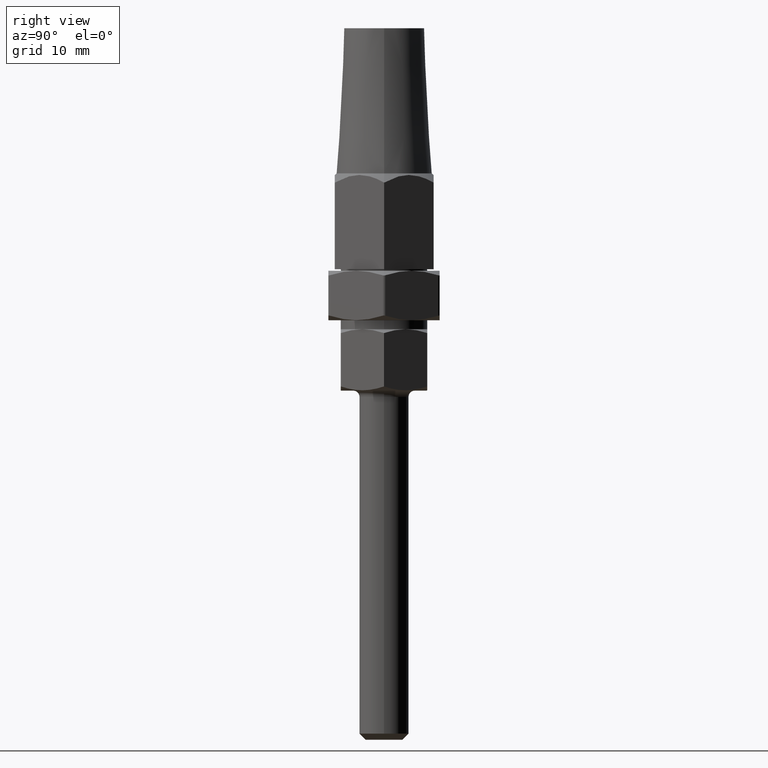
[diagram: clean part render]
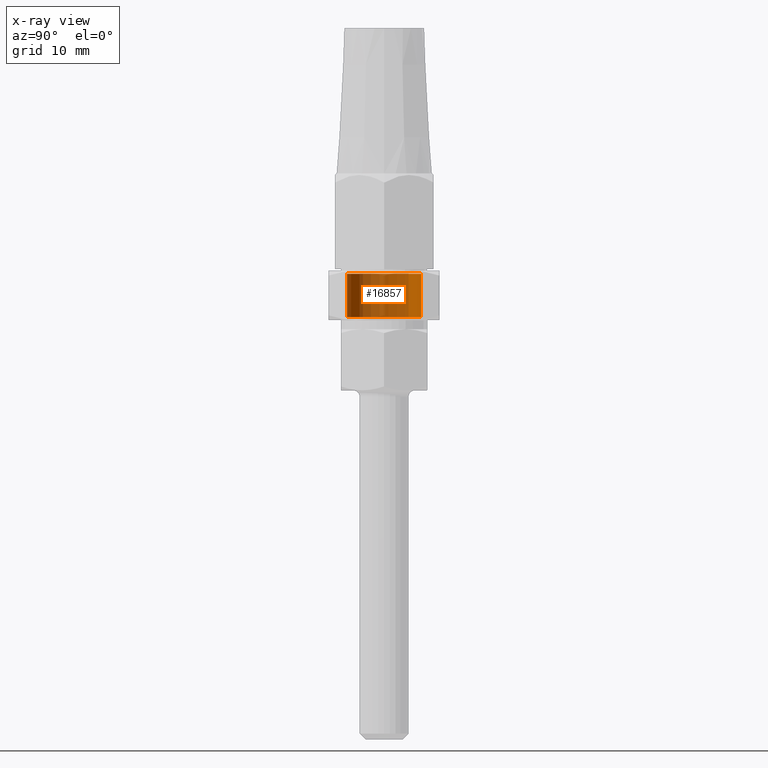
[diagram: x-ray — body ghosted, one internal face saturated and labeled with its STEP entity id]
A machine part, right view, then the same camera in x-ray: the body is ghosted and one INTERNAL B-rep face — a face not visible from any outside direction — is saturated and labeled: STEP entity #16857.
In plain terms, the highlighted cylindrical surface (partial cylindrical patch) has radius 6 mm, axis along (0, 0, -1).
Its self-contained STEP definition (entity closure, byte-faithful):
#51 = CARTESIAN_POINT ( 'NONE',  ( 7.347880794884117800E-016, 3.499999999999996000, -5.999999999999998200 ) ) ;
#251 = AXIS2_PLACEMENT_3D ( 'NONE', #17226, #16180, #13240 ) ;
#671 = CARTESIAN_POINT ( 'NONE',  ( 0.0000000000000000000, -3.499999999999996000, 0.0000000000000000000 ) ) ;
#1059 = DIRECTION ( 'NONE',  ( -0.0000000000000000000, 1.000000000000000000, -0.0000000000000000000 ) ) ;
#1160 = ORIENTED_EDGE ( 'NONE', *, *, #2084, .T. ) ;
#1329 = CARTESIAN_POINT ( 'NONE',  ( 0.0000000000000000000, 3.499999999999996000, 0.0000000000000000000 ) ) ;
#2084 = EDGE_CURVE ( 'NONE', #5135, #16002, #18267, .T. ) ;
#2236 = CARTESIAN_POINT ( 'NONE',  ( 7.347880794884117800E-016, -3.499999999999996000, -5.999999999999998200 ) ) ;
#2899 = DIRECTION ( 'NONE',  ( 0.0000000000000000000, 0.0000000000000000000, 1.000000000000000000 ) ) ;
#3578 = AXIS2_PLACEMENT_3D ( 'NONE', #1329, #9951, #8516 ) ;
#4298 = CARTESIAN_POINT ( 'NONE',  ( 0.0000000000000000000, 3.499999999999996000, 5.999999999999998200 ) ) ;
#4534 = LINE ( 'NONE', #15956, #13570 ) ;
#5135 = VERTEX_POINT ( 'NONE', #51 ) ;
#5938 = ORIENTED_EDGE ( 'NONE', *, *, #15552, .T. ) ;
#7961 = CARTESIAN_POINT ( 'NONE',  ( 0.0000000000000000000, -3.499999999999996000, 5.999999999999998200 ) ) ;
#8516 = DIRECTION ( 'NONE',  ( 0.0000000000000000000, 0.0000000000000000000, 1.000000000000000000 ) ) ;
#9806 = ORIENTED_EDGE ( 'NONE', *, *, #14310, .F. ) ;
#9951 = DIRECTION ( 'NONE',  ( 0.0000000000000000000, 1.000000000000000000, 0.0000000000000000000 ) ) ;
#10097 = LINE ( 'NONE', #10427, #18029 ) ;
#10427 = CARTESIAN_POINT ( 'NONE',  ( 0.0000000000000000000, 4.000000000000000000, 5.999999999999998200 ) ) ;
#10995 = CIRCLE ( 'NONE', #11525, 5.999999999999998200 ) ;
#11426 = ORIENTED_EDGE ( 'NONE', *, *, #17169, .T. ) ;
#11525 = AXIS2_PLACEMENT_3D ( 'NONE', #671, #16931, #2899 ) ;
#13240 = DIRECTION ( 'NONE',  ( 0.0000000000000000000, 0.0000000000000000000, 1.000000000000000000 ) ) ;
#13315 = DIRECTION ( 'NONE',  ( -0.0000000000000000000, 1.000000000000000000, -0.0000000000000000000 ) ) ;
#13570 = VECTOR ( 'NONE', #1059, 1000.000000000000000 ) ;
#14310 = EDGE_CURVE ( 'NONE', #18296, #16002, #10097, .T. ) ;
#15174 = FACE_OUTER_BOUND ( 'NONE', #17130, .T. ) ;
#15235 = VERTEX_POINT ( 'NONE', #2236 ) ;
#15552 = EDGE_CURVE ( 'NONE', #18296, #15235, #10995, .T. ) ;
#15956 = CARTESIAN_POINT ( 'NONE',  ( 7.347880794884117800E-016, 4.000000000000000000, -5.999999999999998200 ) ) ;
#16002 = VERTEX_POINT ( 'NONE', #4298 ) ;
#16180 = DIRECTION ( 'NONE',  ( -0.0000000000000000000, 1.000000000000000000, -0.0000000000000000000 ) ) ;
#16797 = CYLINDRICAL_SURFACE ( 'NONE', #251, 5.999999999999998200 ) ;
#16857 = ADVANCED_FACE ( 'NONE', ( #15174 ), #16797, .F. ) ;
#16931 = DIRECTION ( 'NONE',  ( -0.0000000000000000000, -1.000000000000000000, -0.0000000000000000000 ) ) ;
#17130 = EDGE_LOOP ( 'NONE', ( #5938, #11426, #1160, #9806 ) ) ;
#17169 = EDGE_CURVE ( 'NONE', #15235, #5135, #4534, .T. ) ;
#17226 = CARTESIAN_POINT ( 'NONE',  ( 0.0000000000000000000, 4.000000000000000000, 0.0000000000000000000 ) ) ;
#18029 = VECTOR ( 'NONE', #13315, 1000.000000000000000 ) ;
#18267 = CIRCLE ( 'NONE', #3578, 5.999999999999998200 ) ;
#18296 = VERTEX_POINT ( 'NONE', #7961 ) ;